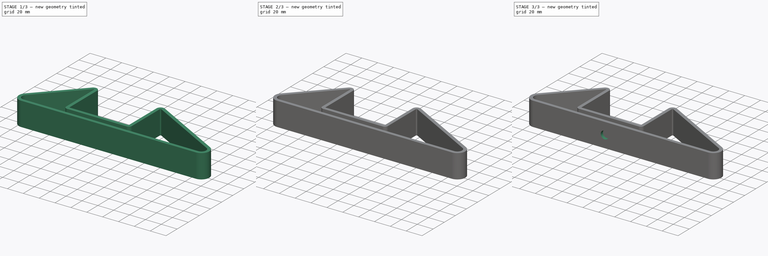
[diagram: build sequence overview — one tinted view per stage of 3, left to right]
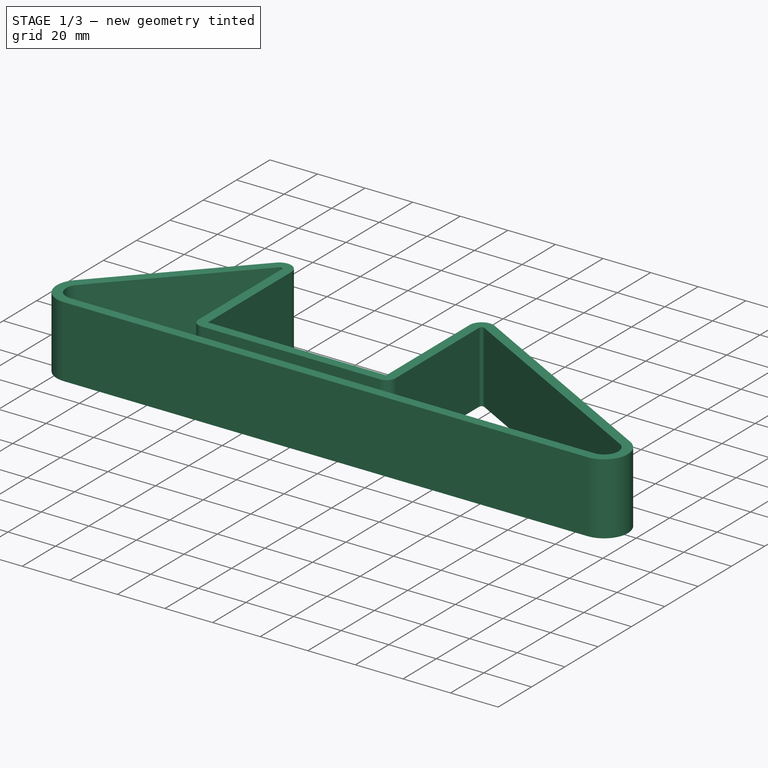
[diagram: stage 1 of 3 — iso view after this stage's code; geometry added in this stage tinted green]
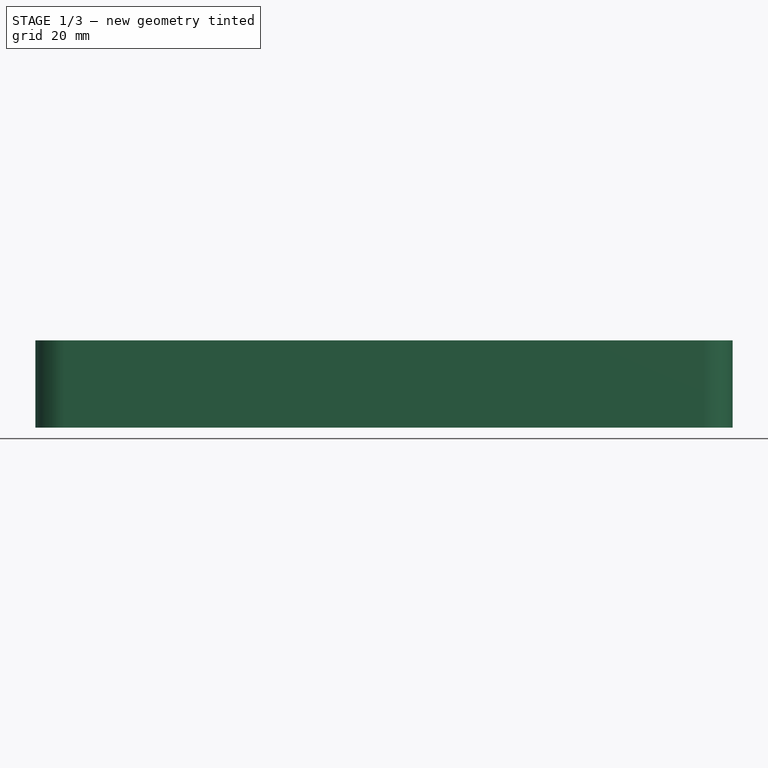
[diagram: stage 1 of 3 — front view after this stage's code; geometry added in this stage tinted green]
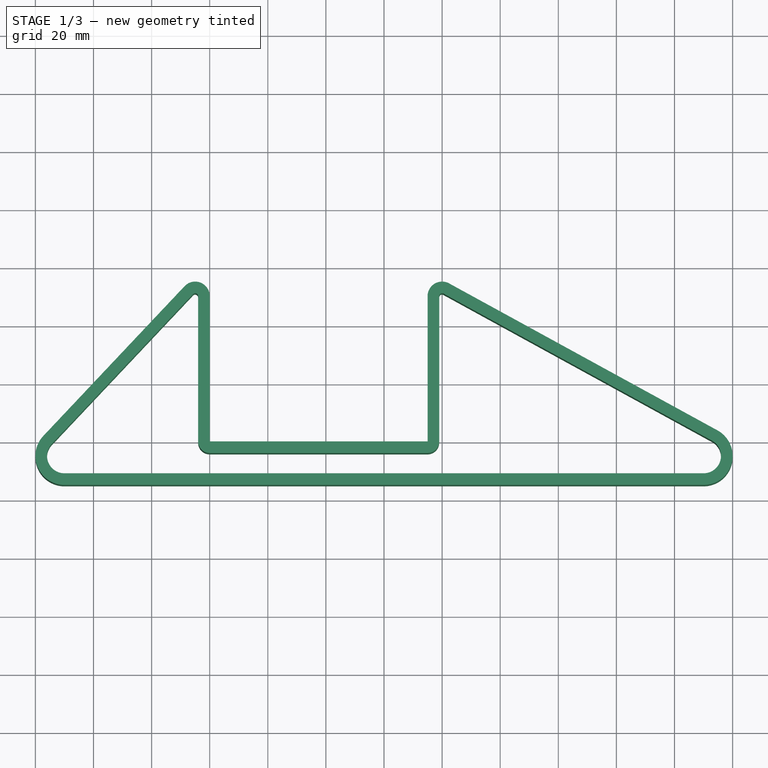
[diagram: stage 1 of 3 — top view after this stage's code; geometry added in this stage tinted green]
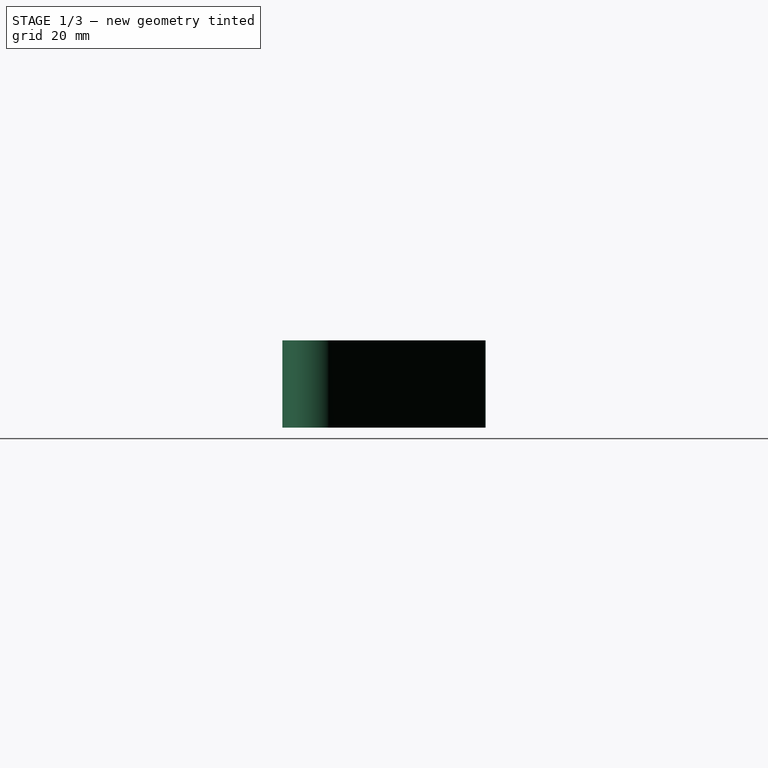
[diagram: stage 1 of 3 — right view after this stage's code; geometry added in this stage tinted green]
FCSTD DOCUMENT  (FreeCAD 0.20R29177 (Git))
Label: base
License: All rights reserved
LicenseURL: http://en.wikipedia.org/wiki/All_rights_reserved
objects: Sketcher::SketchObject×5, PartDesign::Pocket×3, PartDesign::Pad×2, PartDesign::SubShapeBinder×1, PartDesign::Body×1
note: 17 computed .brp shape members not serialized (recipe doc carries the construction recipe); baked Part::Feature solids carry a one-line shape summary decoded from their .brp

FEATURE [Sketcher::SketchObject] Sketch
  FullyConstrained = true
  MapMode = 5
  Support = -> [XY_Plane]
  sketch-geometry (10):
    g0: LineSegment StartX=110 StartY=-15 StartZ=0 EndX=-110 EndY=-15 EndZ=0
    g1: ArcOfCircle CenterX=-110 CenterY=-5 CenterZ=0 NormalX=0 NormalY=0 NormalZ=1 AngleXU=0 Radius=10 StartAngle=2.38545 EndAngle=4.71239
    g2: LineSegment StartX=-117.275 StartY=1.86124 StartZ=0 EndX=-68.6374 EndY=53.4306 EndZ=0
    g3: ArcOfCircle CenterX=-65 CenterY=50 CenterZ=0 NormalX=0 NormalY=0 NormalZ=1 AngleXU=0 Radius=5 StartAngle=0 EndAngle=2.38545
    g4: LineSegment StartX=-60 StartY=50 StartZ=0 EndX=-60 EndY=0 EndZ=0
    g5: LineSegment StartX=-60 StartY=0 StartZ=0 EndX=15 EndY=0 EndZ=0
    g6: LineSegment StartX=15 StartY=0 StartZ=0 EndX=15 EndY=50 EndZ=0
    g7: ArcOfCircle CenterX=20 CenterY=50 CenterZ=0 NormalX=0 NormalY=0 NormalZ=1 AngleXU=0 Radius=5 StartAngle=1.06967 EndAngle=3.14159
    g8: LineSegment StartX=22.4021 StartY=54.3852 StartZ=0 EndX=114.804 EndY=3.77042 EndZ=0
    g9: ArcOfCircle CenterX=110 CenterY=-5 CenterZ=0 NormalX=0 NormalY=0 NormalZ=1 AngleXU=0 Radius=10 StartAngle=4.71239 EndAngle=7.35285
  constraints (27):
    c: Horizontal(g0)
    c: Tangent(g0,g1) = 1.5708
    c: Tangent(g1,g2) = 1.5708
    c: Tangent(g2,g3) = 1.5708
    c: Tangent(g3,g4) = 1.5708
    c: Coincident(g4,g5)
    c: Horizontal(g5)
    c: Coincident(g5,g6)
    c: Vertical(g6)
    c: Tangent(g6,g7) = 1.5708
    c: Tangent(g8,g9) = 1.5708
    c: Coincident(g9,g0)
    c: Tangent(g0,g9,g0) = 1.5708
    c: Tangent(g7,g8) = 1.5708
    c: Vertical(g4)
    c: DistanceX(g0,g0) = 220
    c: DistanceX(g5,g5) = 75
    c: DistanceY(g6,g6) = 50
    c: Equal(g4,g6)
    c: Radius(g7) = 5
    c: Equal(g3,g7)
    c: Radius(g1) = 10
    c: Equal(g9,g1)
    c: DistanceY(g0,g4) = 15
    c: DistanceX(g-1,g5) = 15
    c: DistanceX(g-1,g0) = 110
    c: DistanceY(g5,g-1) = 0
FEATURE [PartDesign::SubShapeBinder] Binder
  BindCopyOnChange = 0
  BindMode = 0
  ClaimChildren = false
  Context = -> Body [Binder.]
  Fuse = false
  MakeFace = true
  Offset = -4
  OffsetFill = false
  OffsetIntersection = false
  OffsetJoinType = 0
  OffsetOpenResult = false
  PartialLoad = false
  Relative = true
  Support = -> [Sketch]
  _Version = 2
FEATURE [PartDesign::Pad] Pad
  Direction = (0,0,1)
  Length = 30
  Length2 = 10
  Profile = -> Sketch
  ReferenceAxis = -> Sketch [N_Axis]
  Type = 0
FEATURE [PartDesign::Pocket] Pocket
  BaseFeature = -> Pad
  Direction = (0,0,1)
  Length = 37
  Length2 = 5
  Profile = -> Binder
  Type = 1
  UseCustomVector = true
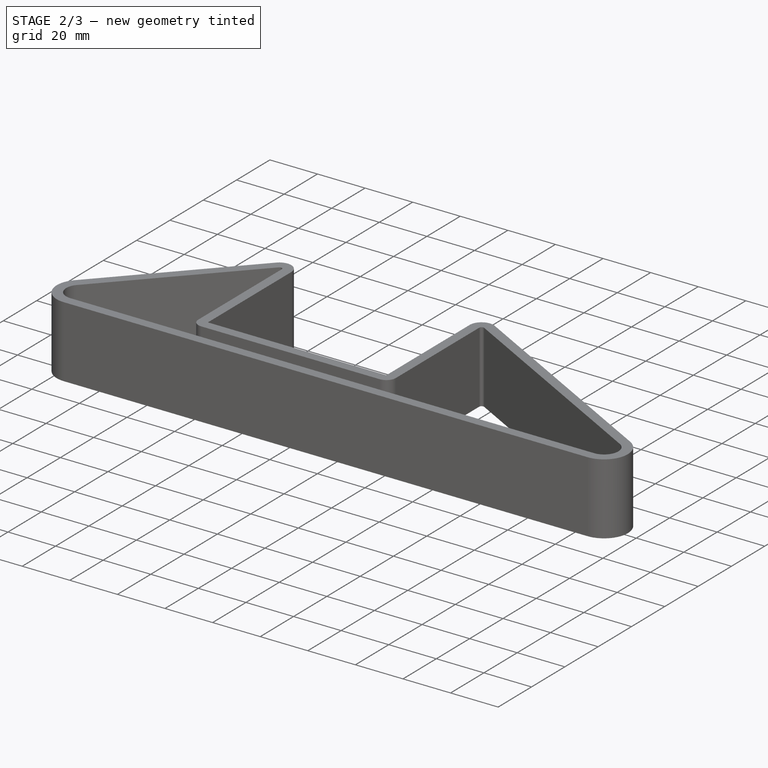
[diagram: stage 2 of 3 — iso view after this stage's code; geometry added in this stage tinted green]
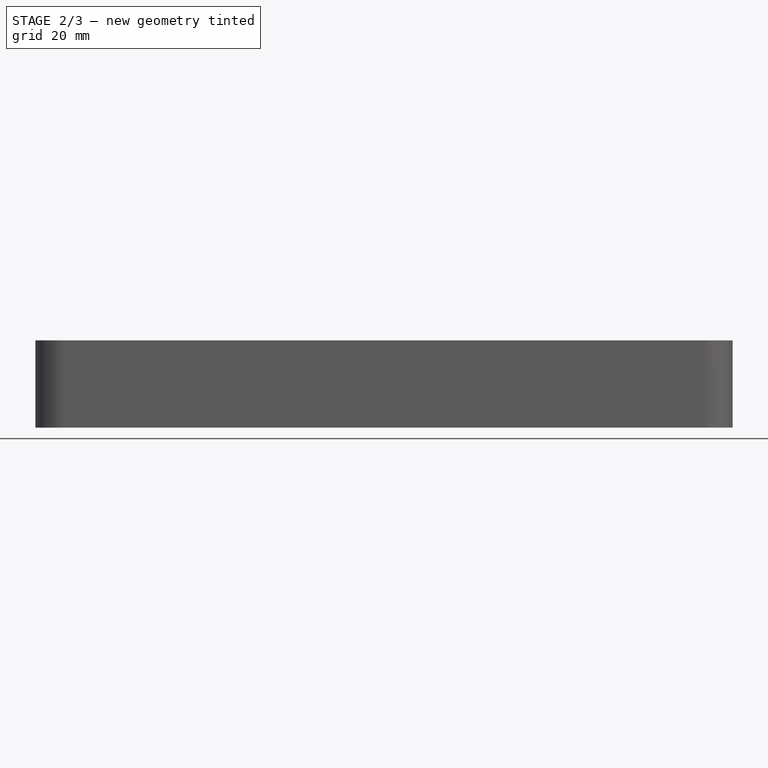
[diagram: stage 2 of 3 — front view after this stage's code; geometry added in this stage tinted green]
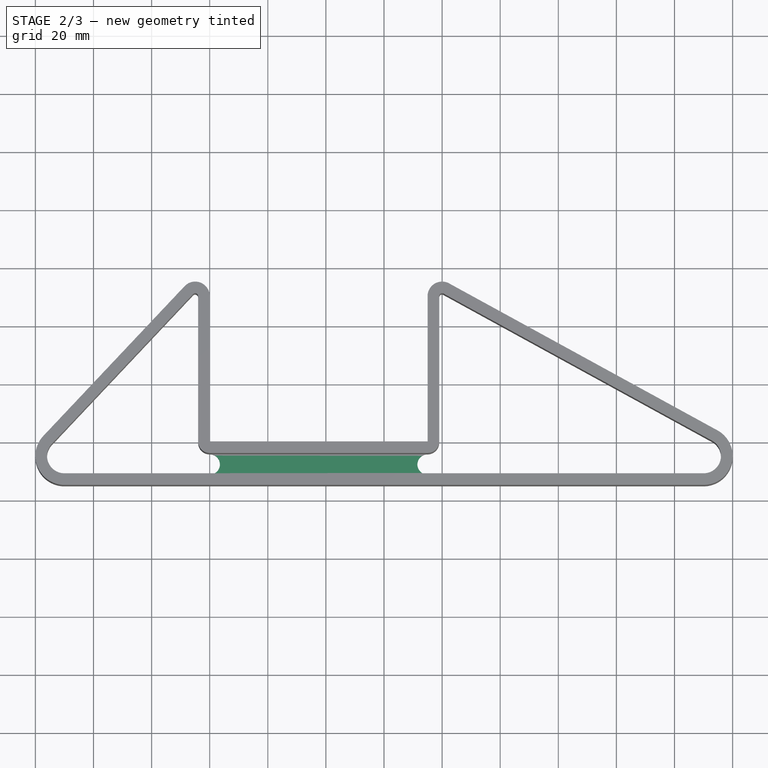
[diagram: stage 2 of 3 — top view after this stage's code; geometry added in this stage tinted green]
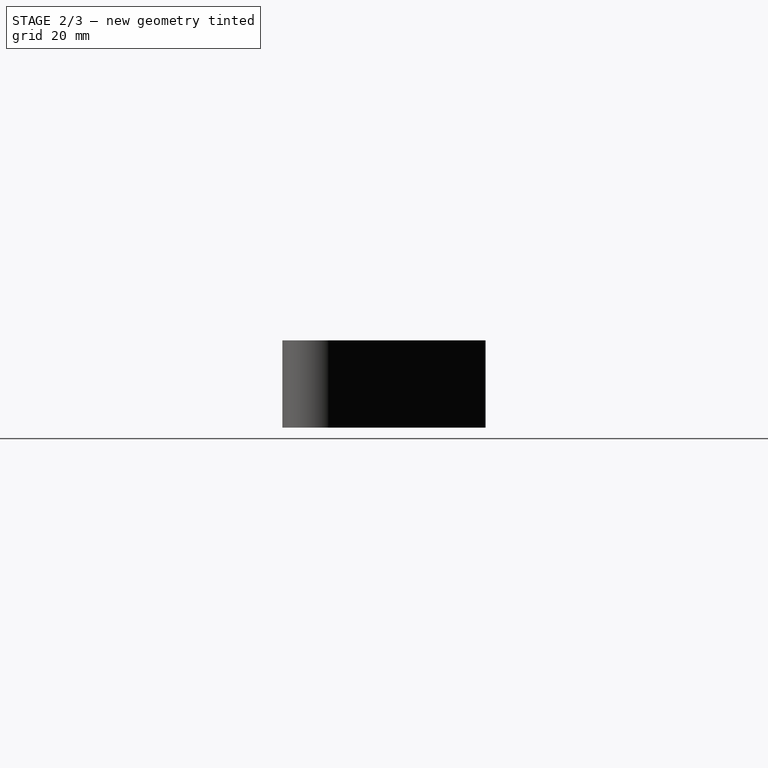
[diagram: stage 2 of 3 — right view after this stage's code; geometry added in this stage tinted green]
FEATURE [Sketcher::SketchObject] Sketch001
  FullyConstrained = true
  MapMode = 5
  Support = -> [XY_Plane]
  expr: Constraints[15] = Sketch.Constraints[15]
  expr: Constraints[16] = Sketch.Constraints[16]
  expr: Constraints[17] = Sketch.Constraints[17]
  expr: Constraints[19] = Sketch.Constraints[19]
  expr: Constraints[21] = Sketch.Constraints[21]
  expr: Constraints[23] = Sketch.Constraints[23]
  expr: Constraints[24] = Sketch.Constraints[24]
  expr: Constraints[25] = Sketch.Constraints[25]
  expr: Constraints[26] = Sketch.Constraints[26]
  sketch-geometry (14):
    g0: LineSegment StartX=110 StartY=-15 StartZ=0 EndX=-110 EndY=-15 EndZ=0
    g1: ArcOfCircle CenterX=-110 CenterY=-5 CenterZ=0 NormalX=0 NormalY=0 NormalZ=1 AngleXU=0 Radius=10 StartAngle=2.38545 EndAngle=4.71239
    g2: LineSegment StartX=-117.275 StartY=1.86124 StartZ=0 EndX=-68.6374 EndY=53.4306 EndZ=0
    g3: ArcOfCircle CenterX=-65 CenterY=50 CenterZ=0 NormalX=0 NormalY=0 NormalZ=1 AngleXU=0 Radius=5 StartAngle=2e-16 EndAngle=2.38545
    g4: LineSegment StartX=-60 StartY=50 StartZ=0 EndX=-60 EndY=0 EndZ=0
    g5: LineSegment StartX=-60 StartY=0 StartZ=0 EndX=15 EndY=0 EndZ=0
    g6: LineSegment StartX=15 StartY=0 StartZ=0 EndX=15 EndY=50 EndZ=0
    g7: ArcOfCircle CenterX=20 CenterY=50 CenterZ=0 NormalX=0 NormalY=0 NormalZ=1 AngleXU=0 Radius=5 StartAngle=1.06967 EndAngle=3.14159
    g8: LineSegment StartX=22.4021 StartY=54.3852 StartZ=0 EndX=114.804 EndY=3.77042 EndZ=0
    g9: ArcOfCircle CenterX=110 CenterY=-5 CenterZ=0 NormalX=0 NormalY=0 NormalZ=1 AngleXU=0 Radius=10 StartAngle=4.71239 EndAngle=7.35285
    g10: LineSegment StartX=-60 StartY=-3.99 StartZ=0 EndX=15 EndY=-3.99 EndZ=0
    g11: LineSegment StartX=15 StartY=-11.01 StartZ=0 EndX=-60 EndY=-11.01 EndZ=0
    g12: ArcOfCircle CenterX=-60 CenterY=-7.5 CenterZ=0 NormalX=0 NormalY=0 NormalZ=1 AngleXU=0 Radius=3.51 StartAngle=4.71239 EndAngle=7.85398
    g13: ArcOfCircle CenterX=15 CenterY=-7.5 CenterZ=0 NormalX=0 NormalY=0 NormalZ=1 AngleXU=0 Radius=3.51 StartAngle=1.5708 EndAngle=4.71239
  constraints (41):
    c: Horizontal(g0)
    c: Tangent(g0,g1) = 1.5708
    c: Tangent(g1,g2) = 1.5708
    c: Tangent(g2,g3) = 1.5708
    c: Tangent(g3,g4) = 1.5708
    c: Coincident(g4,g5)
    c: Horizontal(g5)
    c: Coincident(g5,g6)
    c: Vertical(g6)
    c: Tangent(g6,g7) = 1.5708
    c: Tangent(g8,g9) = 1.5708
    c: Coincident(g9,g0)
    c: Tangent(g0,g9,g0) = 1.5708
    c: Tangent(g7,g8) = 1.5708
    c: Vertical(g4)
    c: DistanceX(g0,g0) = 220
    c: DistanceX(g5,g5) = 75
    c: DistanceY(g6,g6) = 50
    c: Equal(g4,g6)
    c: Radius(g7) = 5
    c: Equal(g3,g7)
    c: Radius(g1) = 10
    c: Equal(g9,g1)
    c: DistanceY(g0,g4) = 15
    c: DistanceX(g-1,g5) = 15
    c: DistanceX(g-1,g0) = 110
    c: DistanceY(g5,g-1) = 0
    c: Horizontal(g10)
    c: Horizontal(g11)
    c: Coincident(g12,g10)
    c: Coincident(g12,g11)
    c: Coincident(g13,g10)
    c: Coincident(g13,g11)
    c: Vertical(g10,g11)
    c: Vertical(g12,g10)
    c: Vertical(g11,g10)
    c: Vertical(g13,g10)
    c: Vertical(g10,g4)
    c: DistanceY(g10,g4) = 3.99
    c: DistanceY(g0,g11) = 3.99
    c: Vertical(g10,g5)
FEATURE [PartDesign::Pad] Pad001
  BaseFeature = -> Pocket
  Direction = (0,0,1)
  Length = 5
  Length2 = 10
  Profile = -> Sketch001
  ReferenceAxis = -> Sketch001 [N_Axis]
  Type = 0
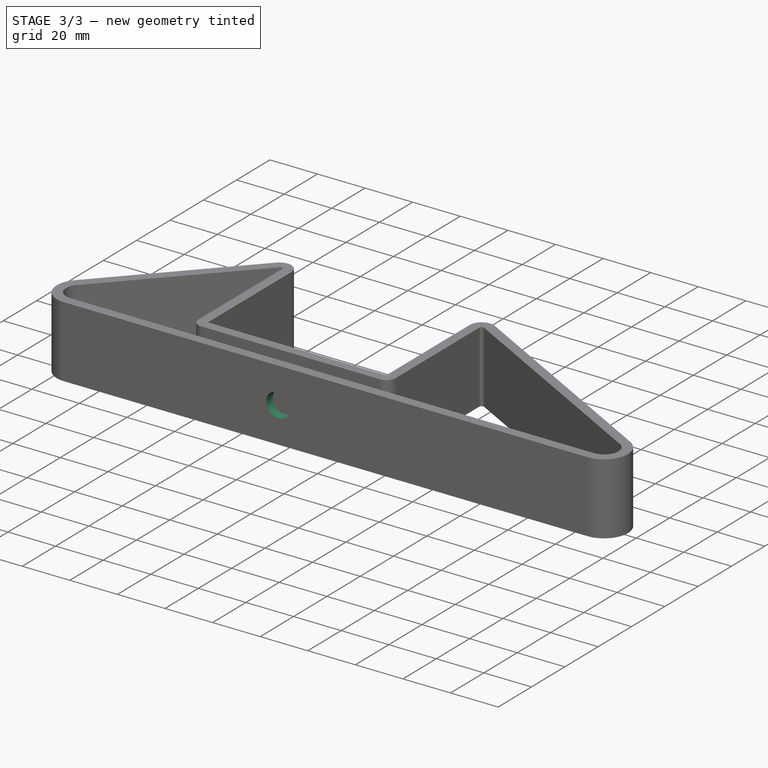
[diagram: stage 3 of 3 — iso view after this stage's code; geometry added in this stage tinted green]
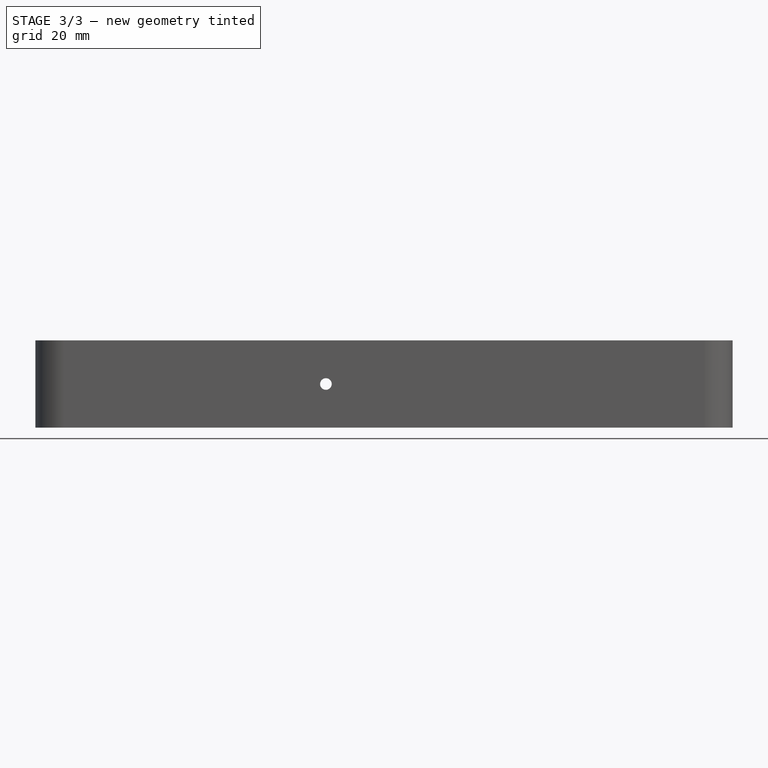
[diagram: stage 3 of 3 — front view after this stage's code; geometry added in this stage tinted green]
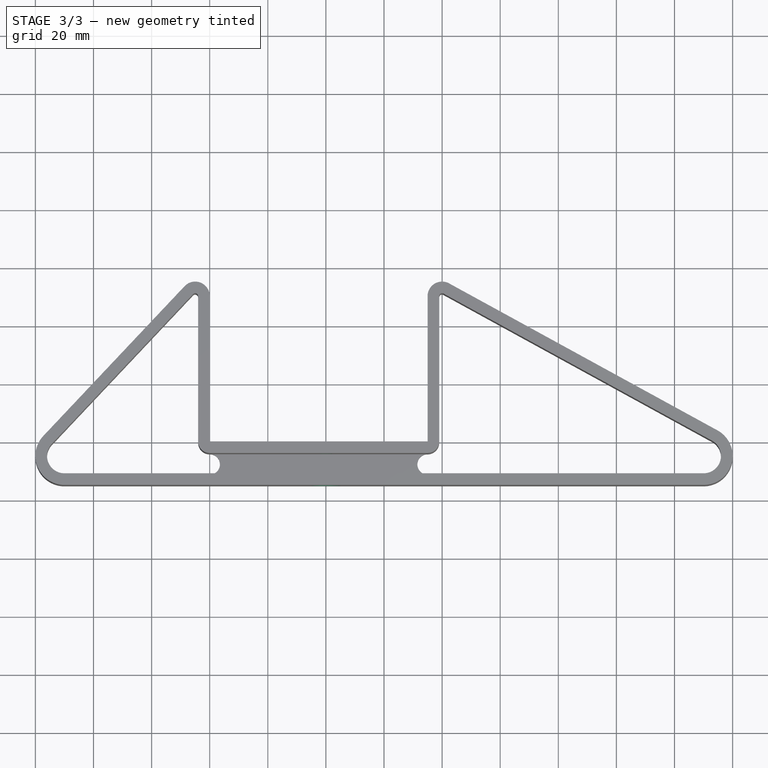
[diagram: stage 3 of 3 — top view after this stage's code; geometry added in this stage tinted green]
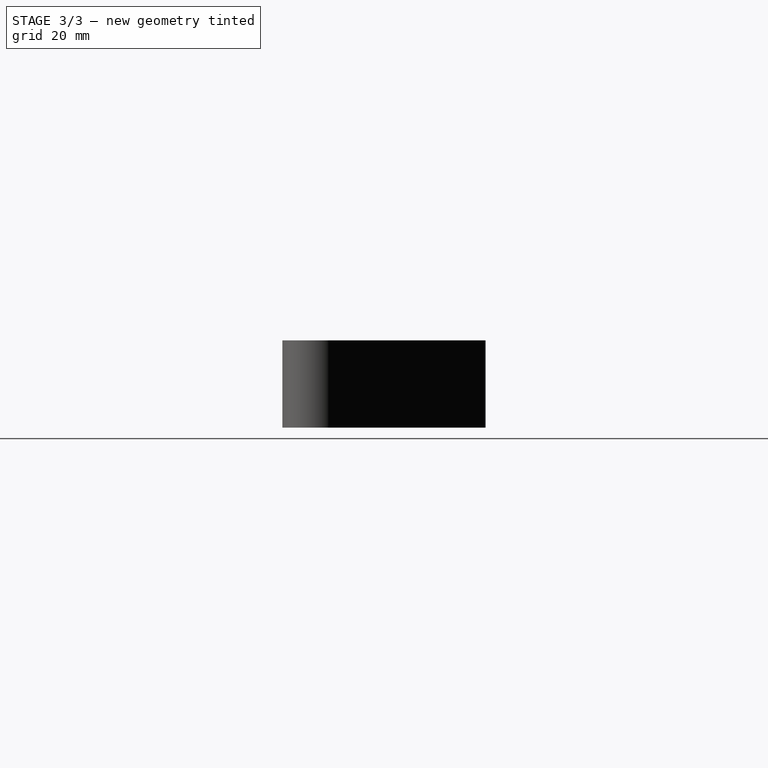
[diagram: stage 3 of 3 — right view after this stage's code; geometry added in this stage tinted green]
FEATURE [Sketcher::SketchObject] Sketch002
  FullyConstrained = true
  MapMode = 5
  Placement = pos=(0,0,0) rot=(0,0.707107,0.707107;3.14159rad)
  Support = -> [Pad001]
FEATURE [Sketcher::SketchObject] Sketch003
  FullyConstrained = true
  MapMode = 5
  Placement = pos=(0,0,0) rot=(0,0.707107,0.707107;3.14159rad)
  Support = -> [Pad001]
  sketch-geometry (1):
    g0: Circle CenterX=20 CenterY=15 CenterZ=0 NormalX=0 NormalY=0 NormalZ=1 AngleXU=0 Radius=2
  constraints (3):
    c: Diameter(g0) = 4
    c: DistanceY(g-1,g0) = 15
    c: DistanceX(g-1,g0) = 20
FEATURE [PartDesign::Pocket] Pocket001
  BaseFeature = -> Pad001
  Direction = (0,-1,2e-16)
  Length = 5
  Length2 = 5
  Profile = -> Sketch003
  ReferenceAxis = -> Sketch003 [N_Axis]
  Type = 2
FEATURE [Sketcher::SketchObject] Sketch004
  FullyConstrained = true
  MapMode = 5
  Placement = pos=(0,-15,0) rot=(1,0,0;1.5708rad)
  Support = -> [Pocket001]
  sketch-geometry (1):
    g0: Circle CenterX=-20 CenterY=15 CenterZ=0 NormalX=0 NormalY=0 NormalZ=1 AngleXU=0 Radius=5
  constraints (3):
    c: Diameter(g0) = 10
    c: DistanceY(g-1,g0) = 15
    c: DistanceX(g-1,g0) = -20
FEATURE [PartDesign::Pocket] Pocket002
  BaseFeature = -> Pocket001
  Direction = (0,1,-2e-16)
  Length = 5
  Length2 = 5
  Profile = -> Sketch004
  ReferenceAxis = -> Sketch004 [N_Axis]
  Type = 2
FEATURE [PartDesign::Body] Body
  Group = -> [Sketch,Binder,Pad,Pocket,Sketch001,Pad001,Sketch002,Sketch003,Pocket001,Sketch004,Pocket002]
  Origin = -> Origin
  Tip = -> Pocket002
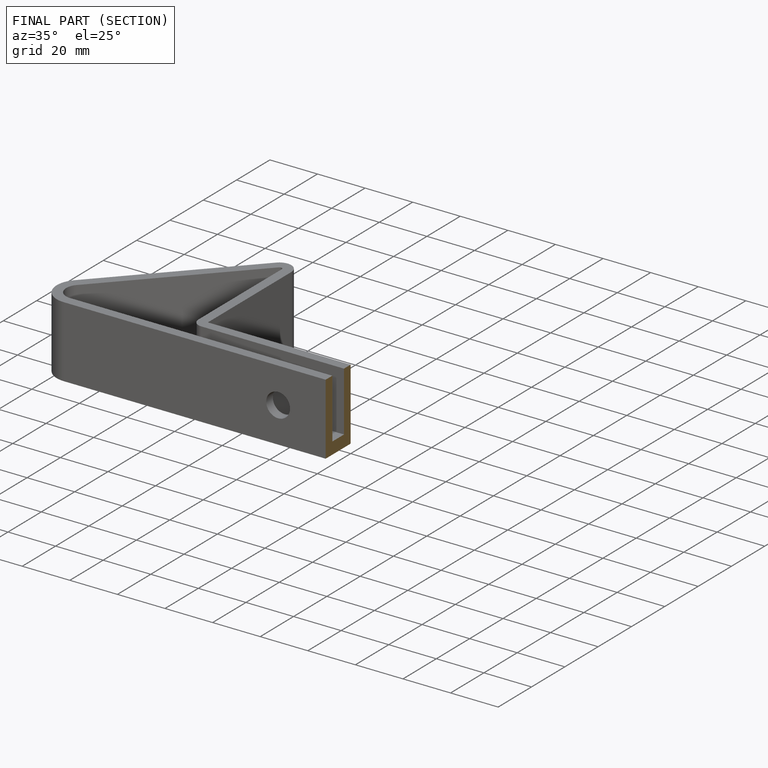
[diagram: finished part — half-section view (interior)]
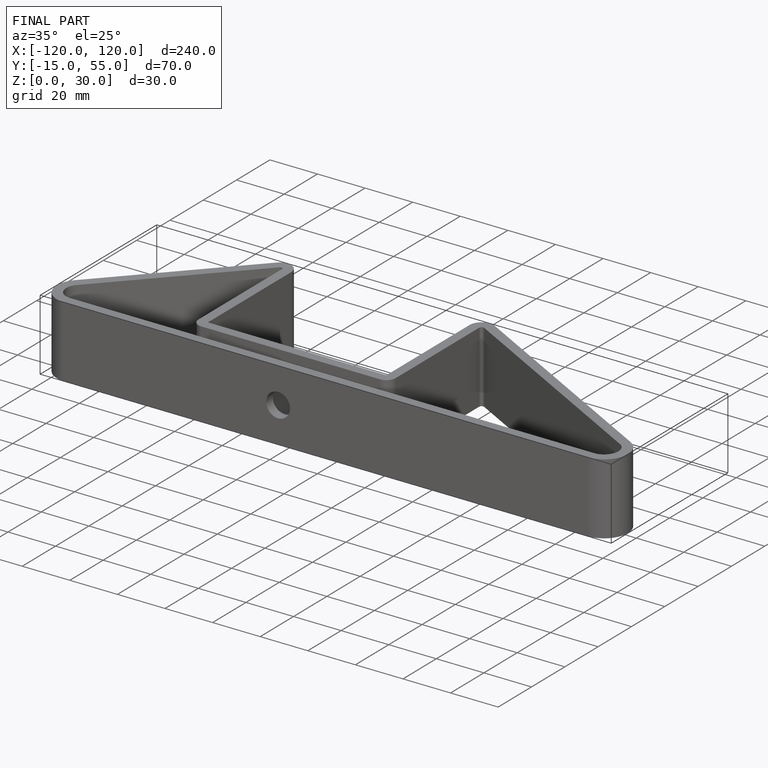
[diagram: finished part — iso view with bounding-box wireframe]
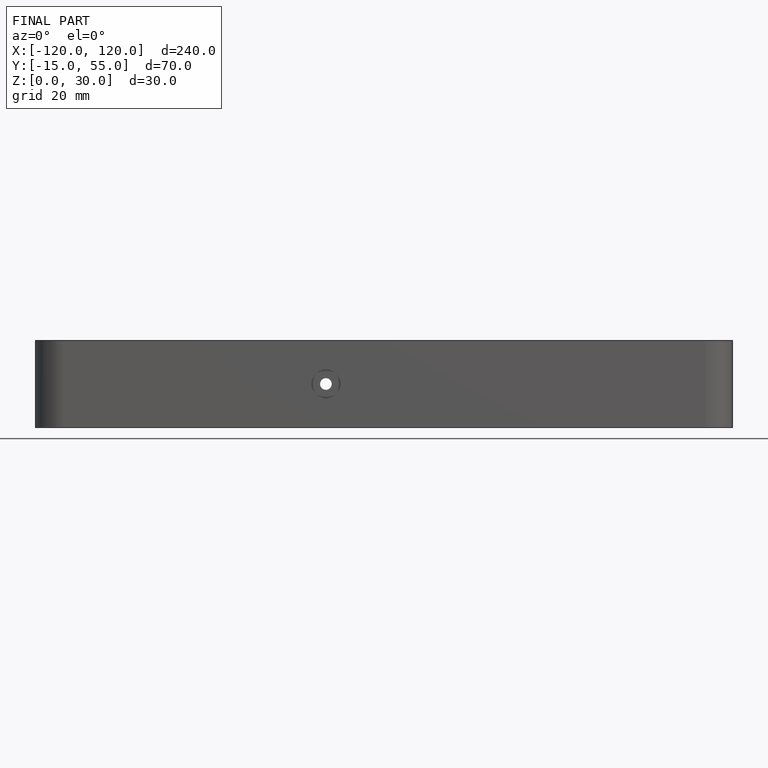
[diagram: finished part — front view with bounding-box wireframe]
